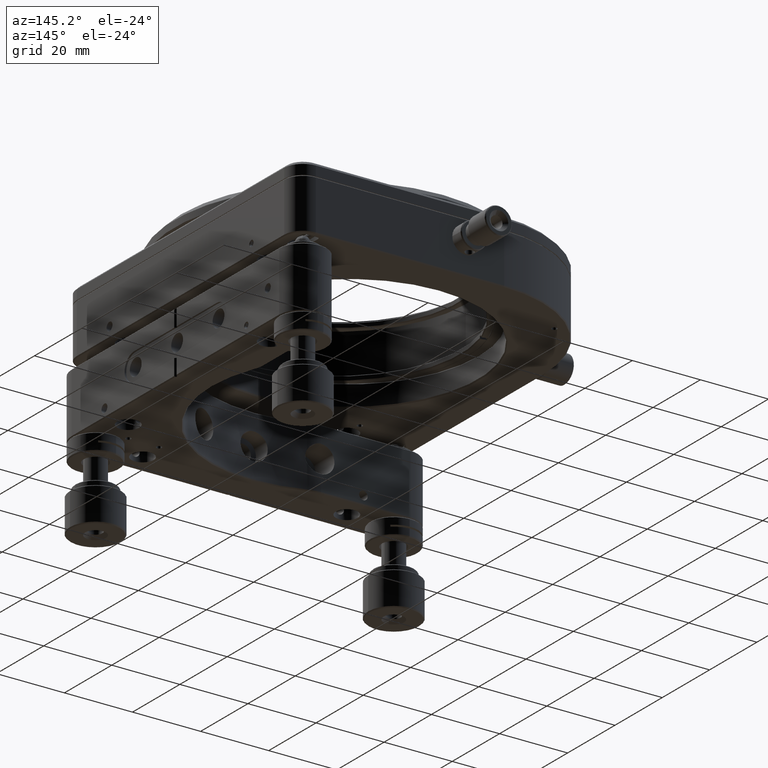
[diagram: clean part render]
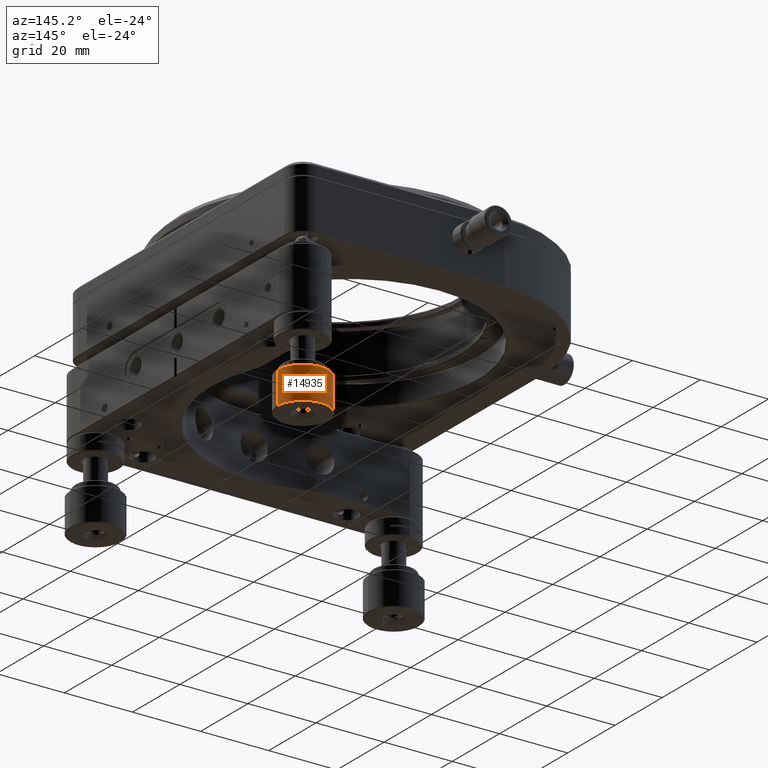
[diagram: same view with one face highlighted and labeled with its STEP entity id]
A machine part, auxiliary view. The second image highlights one B-rep face of the part: STEP entity #14935.
In plain terms, the highlighted cylindrical surface (edge-blend (fillet) strip) has radius 7.5 mm, axis along (-0, -0, -1).
Its self-contained STEP definition (entity closure, byte-faithful):
#532 = DIRECTION ( 'NONE',  ( -0.000000000000000000, -0.000000000000000000, -1.000000000000000000 ) ) ;
#3123 = CARTESIAN_POINT ( 'NONE',  ( 36.30000000000000426, 43.80000000000001137, -32.91185424949237159 ) ) ;
#5422 = DIRECTION ( 'NONE',  ( 1.000000000000000000, 0.000000000000000000, 0.000000000000000000 ) ) ;
#6711 = CARTESIAN_POINT ( 'NONE',  ( 36.30000000000000426, 43.80000000000001137, -23.16185424949236094 ) ) ;
#7906 = CARTESIAN_POINT ( 'NONE',  ( 43.80000000000000426, 43.80000000000001137, -32.91185424949237159 ) ) ;
#8884 = EDGE_LOOP ( 'NONE', ( #14779, #30366, #12835, #24037 ) ) ;
#9750 = EDGE_CURVE ( 'NONE', #21643, #10701, #40837, .T. ) ;
#9888 = LINE ( 'NONE', #6711, #26697 ) ;
#10701 = VERTEX_POINT ( 'NONE', #3123 ) ;
#12835 = ORIENTED_EDGE ( 'NONE', *, *, #9750, .T. ) ;
#13099 = EDGE_CURVE ( 'NONE', #31748, #21643, #15072, .T. ) ;
#14779 = ORIENTED_EDGE ( 'NONE', *, *, #40501, .T. ) ;
#14935 = ADVANCED_FACE ( 'NONE', ( #19571 ), #34365, .T. ) ;
#15072 = LINE ( 'NONE', #29831, #39736 ) ;
#16215 = EDGE_CURVE ( 'NONE', #25356, #10701, #9888, .T. ) ;
#17642 = AXIS2_PLACEMENT_3D ( 'NONE', #7906, #31335, #22697 ) ;
#19571 = FACE_OUTER_BOUND ( 'NONE', #8884, .T. ) ;
#21393 = CARTESIAN_POINT ( 'NONE',  ( 36.30000000000000426, 43.80000000000001137, -23.41185424949235738 ) ) ;
#21643 = VERTEX_POINT ( 'NONE', #33554 ) ;
#22697 = DIRECTION ( 'NONE',  ( 1.000000000000000000, 0.000000000000000000, 0.000000000000000000 ) ) ;
#23587 = CIRCLE ( 'NONE', #27433, 7.500000000000000000 ) ;
#24037 = ORIENTED_EDGE ( 'NONE', *, *, #16215, .F. ) ;
#25356 = VERTEX_POINT ( 'NONE', #21393 ) ;
#26697 = VECTOR ( 'NONE', #36532, 1000.000000000000000 ) ;
#27079 = DIRECTION ( 'NONE',  ( -0.000000000000000000, -0.000000000000000000, -1.000000000000000000 ) ) ;
#27433 = AXIS2_PLACEMENT_3D ( 'NONE', #31595, #46098, #5422 ) ;
#28578 = CARTESIAN_POINT ( 'NONE',  ( 51.30000000000000426, 43.80000000000001137, -23.41185424949235738 ) ) ;
#29831 = CARTESIAN_POINT ( 'NONE',  ( 51.30000000000000426, 43.80000000000001137, -23.16185424949236094 ) ) ;
#30366 = ORIENTED_EDGE ( 'NONE', *, *, #13099, .T. ) ;
#31335 = DIRECTION ( 'NONE',  ( -0.000000000000000000, -0.000000000000000000, 1.000000000000000000 ) ) ;
#31595 = CARTESIAN_POINT ( 'NONE',  ( 43.80000000000000426, 43.80000000000001137, -23.41185424949235738 ) ) ;
#31748 = VERTEX_POINT ( 'NONE', #28578 ) ;
#33554 = CARTESIAN_POINT ( 'NONE',  ( 51.30000000000000426, 43.80000000000001137, -32.91185424949237159 ) ) ;
#34365 = CYLINDRICAL_SURFACE ( 'NONE', #40563, 7.500000000000000000 ) ;
#36532 = DIRECTION ( 'NONE',  ( -0.000000000000000000, -0.000000000000000000, -1.000000000000000000 ) ) ;
#39736 = VECTOR ( 'NONE', #532, 1000.000000000000000 ) ;
#40501 = EDGE_CURVE ( 'NONE', #25356, #31748, #23587, .T. ) ;
#40563 = AXIS2_PLACEMENT_3D ( 'NONE', #45496, #27079, #41856 ) ;
#40837 = CIRCLE ( 'NONE', #17642, 7.500000000000000000 ) ;
#41856 = DIRECTION ( 'NONE',  ( -1.000000000000000000, 0.000000000000000000, 0.000000000000000000 ) ) ;
#45496 = CARTESIAN_POINT ( 'NONE',  ( 43.80000000000000426, 43.80000000000001137, -23.16185424949236094 ) ) ;
#46098 = DIRECTION ( 'NONE',  ( 0.000000000000000000, 0.000000000000000000, -1.000000000000000000 ) ) ;